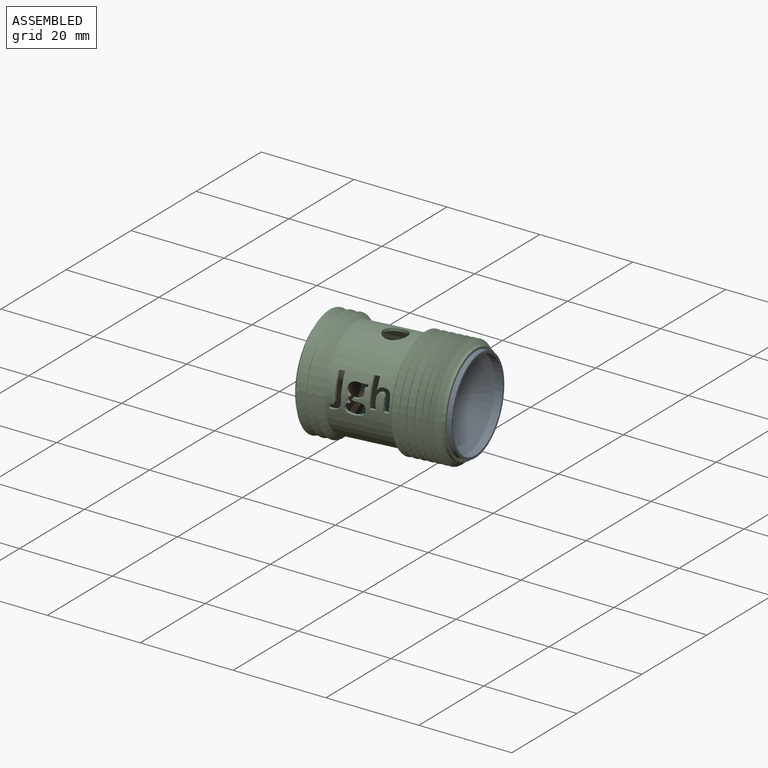
[diagram: assembled view]
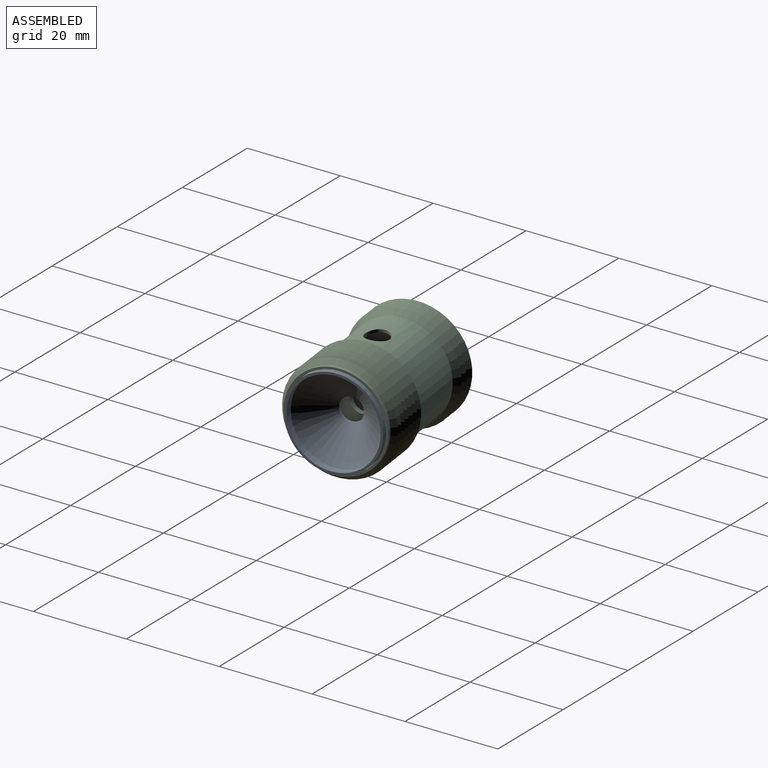
[diagram: assembled view, second angle]
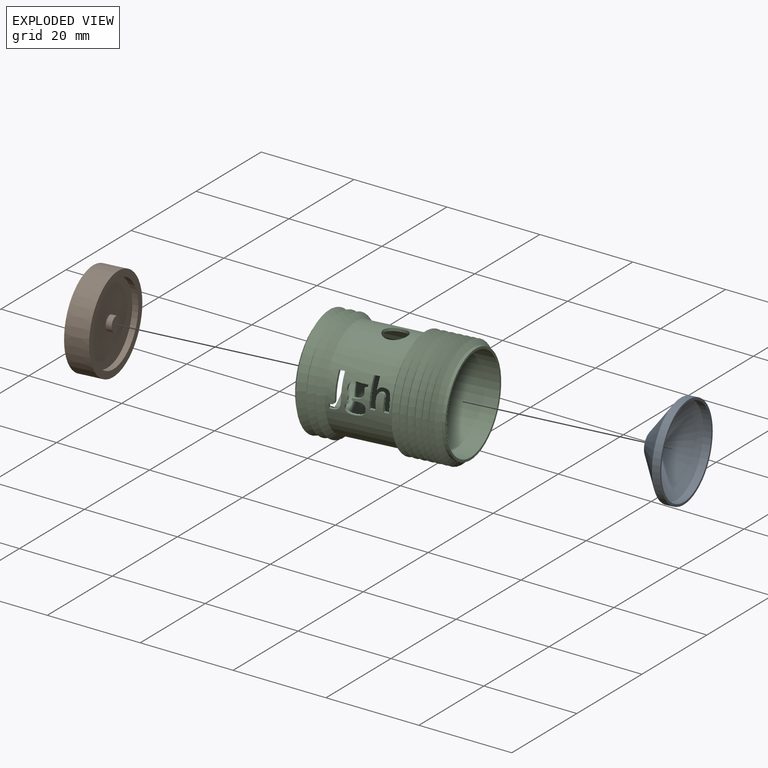
[diagram: exploded view]
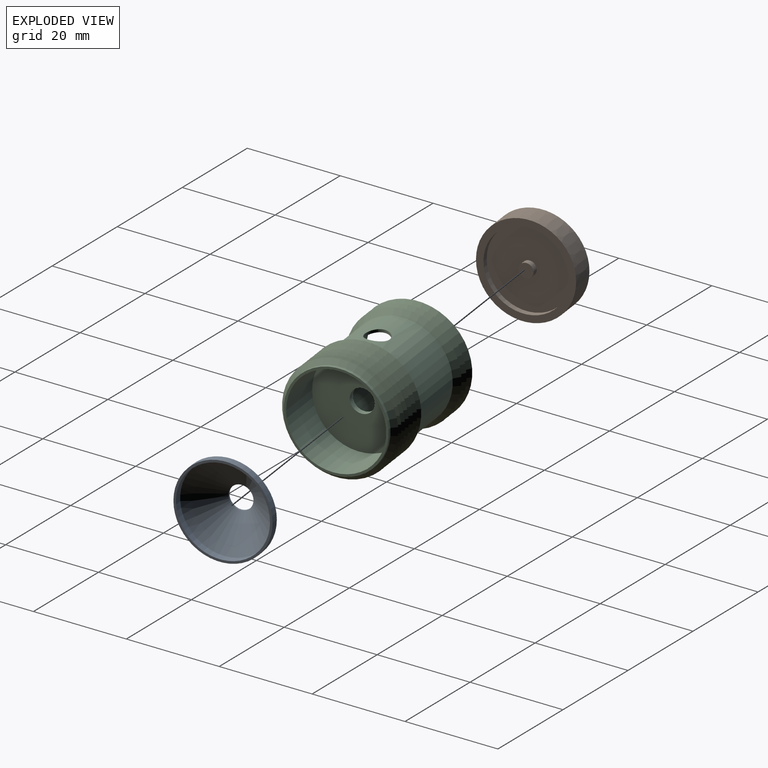
[diagram: exploded view, second angle]
ASSEMBLY  parts=3 mates=2
PART A: 6 faces, bbox 19.8x19.8x7.1 mm
  f0: cone r=9.4mm half-angle=53.2deg, axis (0,0,-1), area 322mm2, adj f1,f5
  f1: cylinder r=2.5mm len=5mm, axis (0,0,1), area 6.2mm2, adj f0,f2
  f2: cone r=9.9mm half-angle=53.2deg, axis (0,0,-1), area 360mm2, adj f1,f3
  f3: cylinder r=9.9mm len=19.8mm, axis (0,0,1), area 100.1mm2, adj f2,f4
  f4: plane 19.8x19.8mm, normal (0,0,-1), area 30.4mm2, adj f3,f5
  f5: cylinder r=9.4mm len=18.8mm, axis (0,0,1), area 93.9mm2, adj f0,f4
PART B: 14 faces, bbox 7.8x20x20 mm
  f0: plane 20x20mm, normal (1,0,0), area 310mm2, adj f1,f7,f8,f9,f10,f11,f12,f13
  f1: cone r=10mm half-angle=0.1deg, axis (-1,0,0), area 314.2mm2, adj f0,f2
  f2: plane 20.01x20.01mm, normal (-1,0,0), area 87.3mm2, adj f1,f3
  f3: cylinder r=8.5mm len=17.01mm, axis (1,0,0), area 64.5mm2, adj f2,f4
  f4: plane 17.01x17.01mm, normal (-1,0,0), area 220mm2, adj f3,f5
  f5: cylinder r=1.5mm len=3.01mm, axis (1,0,0), area 11.4mm2, adj f4,f6
  f6: plane 3.01x3.01mm, normal (-1,0,0), area 7.1mm2, adj f5
  f7: plane 0.16x0.08mm, normal (0,1,0), area 0mm2, adj f0,f8
  f8: cone r=0.08mm half-angle=0deg, axis (0,1,0), area 0.6mm2, adj f0,f7,f9
  f9: plane 0.16x0.08mm, normal (0,-1,0), area 0mm2, adj f0,f8
  f10: cylinder r=2.42mm len=4.85mm, axis (0,-1,0), area 34.4mm2, adj f0,f11,f13
  f11: plane 5.69x2.84mm, normal (0,1,0), area 3.5mm2, adj f0,f10,f12
  f12: cylinder r=2.84mm len=5.69mm, axis (0,-1,0), area 40.5mm2, adj f0,f11,f13
  f13: cone r=2.42mm half-angle=88deg, axis (0,-1,0), area 3.5mm2, adj f0,f10,f12
PART C: 87 faces, bbox 30x23.2x23.2 mm
  f0: cylinder r=10.5mm len=21mm, axis (1,0,0), area 814.3mm2, adj f20,f21,f30,f31,f32,f33,f34,f35
  f1: cylinder r=9.9mm len=19.8mm, axis (-1,0,0), area 1116.7mm2, adj f2,f5,f26,f30,f31,f32,f33,f34
  f2: cylinder r=9.9mm len=3.4mm, axis (-1,0,0), area 4.9mm2, adj f1,f71,f72,f73,f74,f75
  f3: plane 21x21mm, normal (1,0,0), area 32.2mm2, adj f6,f28
  f4: cone r=10.5mm half-angle=57.9deg, axis (1,0,0), area 91.8mm2, adj f5,f25
  f5: plane 21x21mm, normal (-1,0,0), area 38.5mm2, adj f1,f4
  f6: cylinder r=10.5mm len=21mm, axis (1,0,0), area 44.9mm2, adj f3,f7
  f7: cone r=11.6mm half-angle=52.3deg, axis (-1,0,0), area 96.8mm2, adj f6,f8
  f8: cone r=10.5mm half-angle=64.3deg, axis (1,0,0), area 85.1mm2, adj f7,f9
  f9: cone r=11.6mm half-angle=59.9deg, axis (-1,0,0), area 88.6mm2, adj f8,f10
  f10: cone r=10.5mm half-angle=61.3deg, axis (1,0,0), area 87.4mm2, adj f9,f11
  f11: cone r=11.6mm half-angle=56deg, axis (-1,0,0), area 92.5mm2, adj f10,f12
  f12: cone r=10.5mm half-angle=61.3deg, axis (1,0,0), area 87.4mm2, adj f11,f13
  f13: cone r=11.6mm half-angle=53.5deg, axis (-1,0,0), area 95.3mm2, adj f12,f14
  f14: cone r=10.5mm half-angle=61.3deg, axis (1,0,0), area 87.4mm2, adj f13,f15
  f15: cone r=11.6mm half-angle=49deg, axis (-1,0,0), area 101.5mm2, adj f14,f16
  f16: cone r=10.5mm half-angle=61.3deg, axis (1,0,0), area 87.4mm2, adj f15,f17
  f17: cone r=11.6mm half-angle=50.1deg, axis (-1,0,0), area 99.9mm2, adj f16,f18
  f18: cone r=10.5mm half-angle=61.3deg, axis (1,0,0), area 87.4mm2, adj f17,f19
  f19: cone r=11.6mm half-angle=48deg, axis (-1,0,0), area 103.2mm2, adj f18,f20
  f20: cone r=10.5mm half-angle=61.3deg, axis (1,0,0), area 87.4mm2, adj f0,f19
  f21: cone r=11.62mm half-angle=42.7deg, axis (-1,0,0), area 114.6mm2, adj f0,f22
  f22: cone r=10.5mm half-angle=67.8deg, axis (1,0,0), area 83.9mm2, adj f21,f23
  f23: cone r=11.62mm half-angle=38.6deg, axis (-1,0,0), area 124.6mm2, adj f22,f24
  f24: cone r=10.5mm half-angle=62.3deg, axis (1,0,0), area 87.8mm2, adj f23,f25
  f25: cone r=11.62mm half-angle=35.3deg, axis (-1,0,0), area 134.6mm2, adj f4,f24
  f26: plane 19.8x19.8mm, normal (-1,0,0), area 288.3mm2, adj f1,f27
  f27: cylinder r=2.5mm len=5mm, axis (1,0,0), area 18.1mm2, adj f26,f29
  f28: cylinder r=10mm len=20mm, axis (1,0,0), area 615.8mm2, adj f3,f29
  f29: plane 20x20mm, normal (1,0,0), area 294.5mm2, adj f27,f28
  f30: cylinder r=2.5mm len=5mm, axis (0,0,-1), area 9.6mm2, adj f0,f1
  f31: plane 0.9x0.59mm, normal (-1,0,0), area 0.4mm2, adj f0,f1,f32,f59
  f32: plane 0.71x0.67mm, normal (-0.25,0,0.97), area 0.4mm2, adj f0,f1,f31,f33
  f33: extruded ~0.84x0.64mm, area 0.4mm2, adj f0,f1,f32,f34
  f34: extruded ~1.07x0.87mm, area 0.7mm2, adj f0,f1,f33,f35
  f35: extruded ~1.33x0.67mm, area 0.9mm2, adj f0,f1,f34,f36
  f36: plane 0.61x0.21mm, normal (0.06,0,1), area 0.1mm2, adj f0,f1,f35,f37
  f37: plane 0.61x0.17mm, normal (0.11,0,0.99), area 0.1mm2, adj f0,f1,f36,f38
  f38: extruded ~0.64x0.3mm, area 0.2mm2, adj f0,f1,f37,f39
  f39: extruded ~0.64x0.63mm, area 0.5mm2, adj f0,f1,f38,f40
  f40: plane 0.72x0.6mm, normal (0,0,-1), area 0.4mm2, adj f0,f1,f39,f41
  f41: extruded ~1.07x0.62mm, area 0.7mm2, adj f0,f1,f40,f42
  f42: extruded ~0.88x0.61mm, area 0.6mm2, adj f0,f1,f41,f43
  f43: extruded ~1.16x0.7mm, area 0.8mm2, adj f0,f1,f42,f44
  f44: extruded ~1.79x0.68mm, area 1.1mm2, adj f0,f1,f43,f45
  f45: extruded ~1.36x0.66mm, area 0.9mm2, adj f0,f1,f44,f46
  f46: extruded ~0.87x0.7mm, area 0.6mm2, adj f0,f1,f45,f47
  f47: extruded ~0.64x0.62mm, area 0.4mm2, adj f0,f1,f46,f48
  f48: extruded ~0.7x0.61mm, area 0.5mm2, adj f0,f1,f47,f49
  f49: extruded ~0.61x0.31mm, area 0.2mm2, adj f0,f1,f48,f50
  f50: extruded ~0.63x0.37mm, area 0.2mm2, adj f0,f1,f49,f51
  f51: extruded ~0.65x0.4mm, area 0.3mm2, adj f0,f1,f50,f52
  f52: extruded ~0.65x0.41mm, area 0.3mm2, adj f0,f1,f51,f53
  f53: extruded ~0.7x0.53mm, area 0.4mm2, adj f0,f1,f52,f54
  f54: extruded ~0.81x0.75mm, area 0.5mm2, adj f0,f1,f53,f55
  f55: extruded ~1.08x1.02mm, area 0.8mm2, adj f0,f1,f54,f56
  f56: extruded ~1.29x0.83mm, area 0.9mm2, adj f0,f1,f55,f57
  f57: extruded ~0.68x0.42mm, area 0.3mm2, adj f0,f1,f56,f58
  f58: extruded ~0.68x0.31mm, area 0.2mm2, adj f0,f1,f57,f59
  f59: plane 1.48x0.66mm, normal (0,0,-1), area 1mm2, adj f0,f1,f31,f58
  f60: plane 2.77x1mm, normal (-1,0,0), area 1.7mm2, adj f0,f1,f61,f76
  f61: extruded ~1.16x1.04mm, area 0.8mm2, adj f0,f1,f60,f62
  f62: extruded ~1.14x0.84mm, area 0.8mm2, adj f0,f1,f61,f63
  f63: extruded ~1.23x0.92mm, area 0.9mm2, adj f0,f1,f62,f64
  f64: plane 0.64x0.06mm, normal (0,0,-1), area 0mm2, adj f0,f1,f63,f65
  f65: plane 0.79x0.34mm, normal (-1,0,0.08), area 0.2mm2, adj f0,f1,f64,f66
  f66: extruded ~0.98x0.66mm, area 0.4mm2, adj f0,f1,f65,f67
  f67: plane 1.45x1.21mm, normal (-1,0,0), area 0.8mm2, adj f0,f1,f66,f68
  f68: plane 1.16x0.74mm, normal (0,0,-1), area 0.9mm2, adj f0,f1,f67,f69
  f69: plane 5.92x2.56mm, normal (1,0,0), area 3.8mm2, adj f0,f1,f68,f70
  f70: plane 1.16x0.6mm, normal (0,0,1), area 0.7mm2, adj f0,f1,f69,f71
  f71: plane 2x0.8mm, normal (-1,0,0), area 1.2mm2, adj f0,f2,f70,f72
  f72: extruded ~1.07x0.9mm, area 0.7mm2, adj f0,f2,f71,f73
  f73: extruded ~0.74x0.7mm, area 0.5mm2, adj f0,f2,f72,f74
  f74: extruded ~0.92x0.91mm, area 0.8mm2, adj f0,f2,f73,f75
  f75: plane 2.48x0.92mm, normal (1,0,0), area 1.5mm2, adj f0,f2,f74,f76
  f76: plane 1.16x0.6mm, normal (0,0,1), area 0.7mm2, adj f0,f1,f60,f75
  f77: extruded ~1.32x0.68mm, area 0.9mm2, adj f0,f1,f78,f86
  f78: extruded ~1.48x0.66mm, area 0.9mm2, adj f0,f1,f77,f79
  f79: plane 5.2x2.3mm, normal (-1,0,0), area 3.3mm2, adj f0,f1,f78,f80
  f80: plane 1.18x0.72mm, normal (0,0,-1), area 0.8mm2, adj f0,f1,f79,f81
  f81: plane 5.21x2.3mm, normal (1,0,0), area 3.3mm2, adj f0,f1,f80,f82
  f82: extruded ~0.76x0.6mm, area 0.5mm2, adj f0,f1,f81,f83
  f83: extruded ~0.61x0.56mm, area 0.4mm2, adj f0,f1,f82,f84
  f84: extruded ~0.61x0.56mm, area 0.3mm2, adj f0,f1,f83,f85
  f85: plane 0.98x0.71mm, normal (1,0,0), area 0.6mm2, adj f0,f1,f84,f86
  f86: extruded ~0.7x0.62mm, area 0.4mm2, adj f0,f1,f77,f85
PLACE A rot(axis=(-0.53,-0.6,0.6),124.1deg) t=(7.16,-46.36,-27.29)mm
PLACE B rot(axis=(-0.06,1,0),180deg) t=(-23.41,-50.12,-27.29)mm
PLACE C rot(axis=(0,0,1),7deg) t=(-23.55,-50.14,-27.29)mm
MATE cylindrical C.f0 <-> B.f1  axis (-0.99,-0.12,0) through (-23.55,-50.14,-27.29)mm
MATE cylindrical A.f0 <-> C.f0  axis (0.99,0.12,0) through (7.16,-46.36,-27.29)mm
